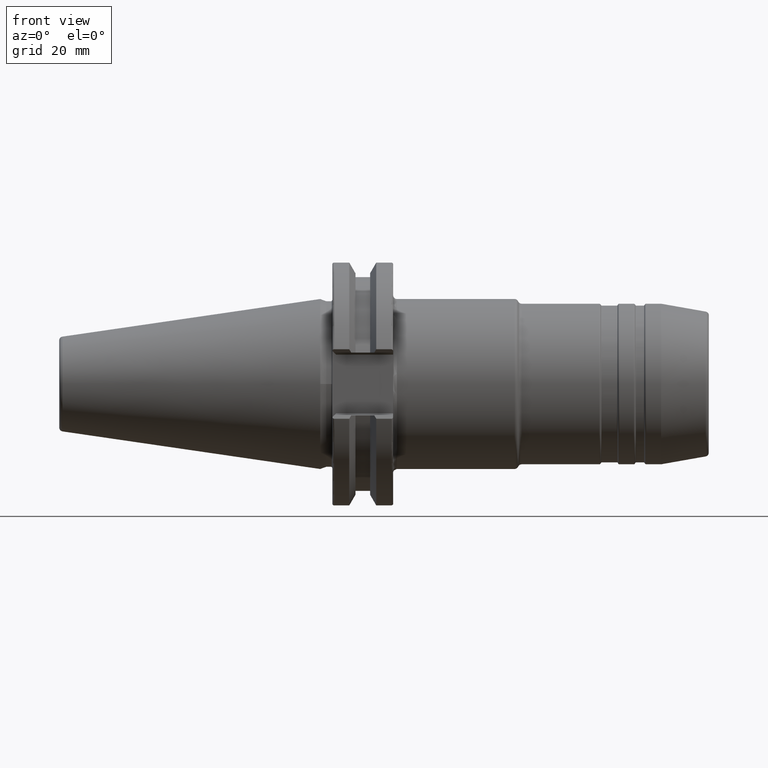
[diagram: clean part render]
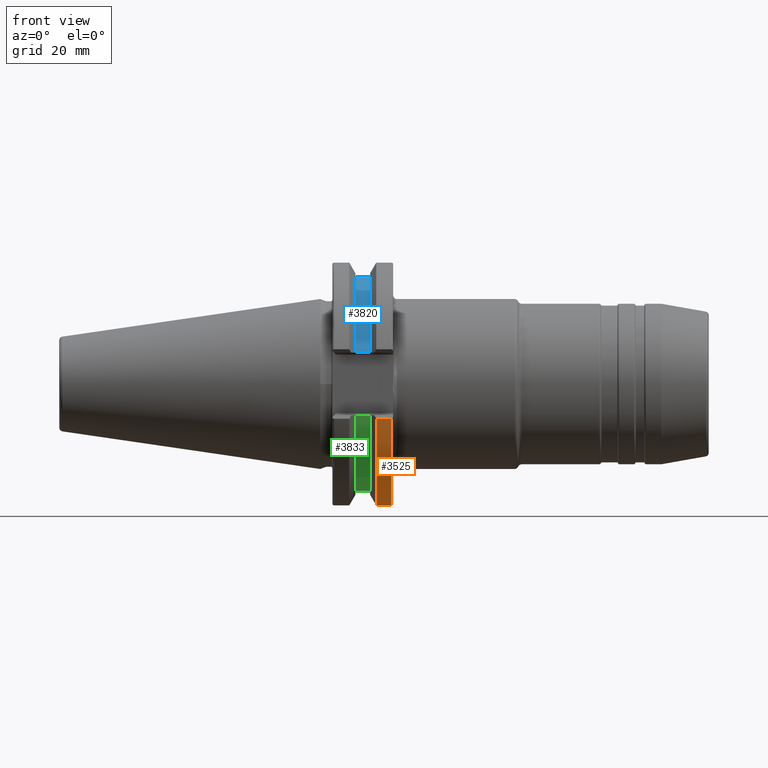
[diagram: same view with three faces highlighted in distinct colors, each labeled with its STEP entity id]
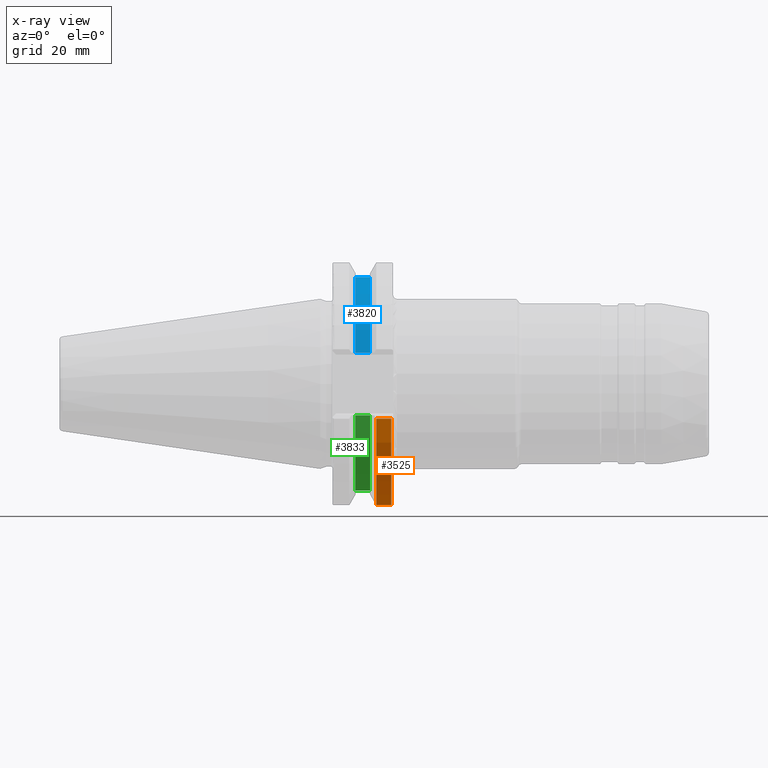
[diagram: x-ray of the same camera — body ghosted, the three highlighted faces saturated]
A machine part, front view with three faces highlighted in distinct colors.
The next image is the same camera in x-ray (body ghosted, the three faces saturated) — at least one of them is partly hidden behind the body in this view.
Their STEP definitions:

[orange] entity #3525 — the highlighted cylindrical surface (partial cylindrical patch) has radius 31.75 mm, axis along (1, 0, 0).
#1096=DIRECTION('',(1.E0,0.E0,0.E0));
#1097=VECTOR('',#1096,3.914790865E0);
#1098=CARTESIAN_POINT('',(1.466020913500E1,3.042082819764E1,-9.090418679549E0));
#1099=LINE('',#1098,#1097);
#1100=DIRECTION('',(-1.E0,0.E0,0.E0));
#1101=VECTOR('',#1100,3.914790865E0);
#1102=CARTESIAN_POINT('',(1.8575E1,-3.042082819764E1,-9.090418679549E0));
#1103=LINE('',#1102,#1101);
#1382=CARTESIAN_POINT('',(1.466020913500E1,3.042082819764E1,-9.090418679549E0));
#1403=CARTESIAN_POINT('',(1.466020913500E1,-3.042082819764E1,
-9.090418679549E0));
#1409=CARTESIAN_POINT('',(1.466020913500E1,0.E0,0.E0));
#1410=DIRECTION('',(1.E0,0.E0,0.E0));
#1411=DIRECTION('',(0.E0,-9.581363211856E-1,-2.863123993559E-1));
#1412=AXIS2_PLACEMENT_3D('',#1409,#1410,#1411);
#1521=CARTESIAN_POINT('',(1.8575E1,0.E0,0.E0));
#1522=DIRECTION('',(-1.E0,0.E0,0.E0));
#1523=DIRECTION('',(0.E0,9.581363211856E-1,-2.863123993559E-1));
#1524=AXIS2_PLACEMENT_3D('',#1521,#1522,#1523);
#1563=VERTEX_POINT('',#1382);
#1572=VERTEX_POINT('',#1403);
#1630=CARTESIAN_POINT('',(1.8575E1,3.042082819764E1,-9.090418679549E0));
#1631=VERTEX_POINT('',#1630);
#1634=CARTESIAN_POINT('',(1.8575E1,-3.042082819764E1,-9.090418679549E0));
#1635=VERTEX_POINT('',#1634);
#3512=CARTESIAN_POINT('',(0.E0,0.E0,0.E0));
#3513=DIRECTION('',(1.E0,0.E0,0.E0));
#3514=DIRECTION('',(0.E0,0.E0,1.E0));
#3515=AXIS2_PLACEMENT_3D('',#3512,#3513,#3514);
#3516=CYLINDRICAL_SURFACE('',#3515,3.175E1);
#3518=ORIENTED_EDGE('',*,*,#3517,.F.);
#3519=ORIENTED_EDGE('',*,*,#3360,.F.);
#3521=ORIENTED_EDGE('',*,*,#3520,.F.);
#3522=ORIENTED_EDGE('',*,*,#3328,.F.);
#3523=EDGE_LOOP('',(#3518,#3519,#3521,#3522));
#3524=FACE_OUTER_BOUND('',#3523,.F.);
#3525=ADVANCED_FACE('',(#3524),#3516,.T.);
#1413=CIRCLE('',#1412,3.175E1);
#1525=CIRCLE('',#1524,3.175E1);
#3328=EDGE_CURVE('',#1635,#1572,#1103,.T.);
#3360=EDGE_CURVE('',#1563,#1631,#1099,.T.);
#3517=EDGE_CURVE('',#1631,#1635,#1525,.T.);
#3520=EDGE_CURVE('',#1572,#1563,#1413,.T.);

[blue] entity #3820 — the highlighted cylindrical surface (partial cylindrical patch) has radius 28.15 mm, axis along (1, 0, 0).
#1430=DIRECTION('',(1.E0,0.E0,0.E0));
#1431=VECTOR('',#1430,3.83E0);
#1432=CARTESIAN_POINT('',(9.2191E0,-2.693225575402E1,8.19E0));
#1433=LINE('',#1432,#1431);
#1434=CARTESIAN_POINT('',(9.2191E0,0.E0,0.E0));
#1435=DIRECTION('',(-1.E0,0.E0,0.E0));
#1436=DIRECTION('',(0.E0,-9.567408793613E-1,2.909413854352E-1));
#1437=AXIS2_PLACEMENT_3D('',#1434,#1435,#1436);
#1439=DIRECTION('',(1.E0,0.E0,0.E0));
#1440=VECTOR('',#1439,3.83E0);
#1441=CARTESIAN_POINT('',(9.2191E0,2.693225575402E1,8.19E0));
#1442=LINE('',#1441,#1440);
#1443=CARTESIAN_POINT('',(1.30491E1,0.E0,0.E0));
#1444=DIRECTION('',(1.E0,0.E0,0.E0));
#1445=DIRECTION('',(0.E0,9.567408793613E-1,2.909413854352E-1));
#1446=AXIS2_PLACEMENT_3D('',#1443,#1444,#1445);
#1527=CARTESIAN_POINT('',(9.2191E0,2.693225575402E1,8.19E0));
#1529=VERTEX_POINT('',#1527);
#1534=CARTESIAN_POINT('',(1.30491E1,2.693225575402E1,8.19E0));
#1535=VERTEX_POINT('',#1534);
#1543=CARTESIAN_POINT('',(9.2191E0,-2.693225575402E1,8.19E0));
#1545=VERTEX_POINT('',#1543);
#1550=CARTESIAN_POINT('',(1.30491E1,-2.693225575402E1,8.19E0));
#1551=VERTEX_POINT('',#1550);
#3808=CARTESIAN_POINT('',(0.E0,0.E0,0.E0));
#3809=DIRECTION('',(1.E0,0.E0,0.E0));
#3810=DIRECTION('',(0.E0,0.E0,1.E0));
#3811=AXIS2_PLACEMENT_3D('',#3808,#3809,#3810);
#3812=CYLINDRICAL_SURFACE('',#3811,2.815E1);
#3813=ORIENTED_EDGE('',*,*,#3609,.F.);
#3815=ORIENTED_EDGE('',*,*,#3814,.T.);
#3816=ORIENTED_EDGE('',*,*,#3693,.T.);
#3817=ORIENTED_EDGE('',*,*,#3788,.T.);
#3818=EDGE_LOOP('',(#3813,#3815,#3816,#3817));
#3819=FACE_OUTER_BOUND('',#3818,.F.);
#3820=ADVANCED_FACE('',(#3819),#3812,.T.);
#1438=CIRCLE('',#1437,2.815E1);
#1447=CIRCLE('',#1446,2.815E1);
#3609=EDGE_CURVE('',#1545,#1551,#1433,.T.);
#3693=EDGE_CURVE('',#1529,#1535,#1442,.T.);
#3788=EDGE_CURVE('',#1535,#1551,#1447,.T.);
#3814=EDGE_CURVE('',#1545,#1529,#1438,.T.);

[green] entity #3833 — the highlighted cylindrical surface (partial cylindrical patch) has radius 28.15 mm, axis along (1, 0, 0).
#1448=DIRECTION('',(1.E0,0.E0,0.E0));
#1449=VECTOR('',#1448,3.83E0);
#1450=CARTESIAN_POINT('',(9.2191E0,-2.693225575402E1,-8.19E0));
#1451=LINE('',#1450,#1449);
#1452=CARTESIAN_POINT('',(1.30491E1,0.E0,0.E0));
#1453=DIRECTION('',(1.E0,0.E0,0.E0));
#1454=DIRECTION('',(0.E0,-9.567408793613E-1,-2.909413854352E-1));
#1455=AXIS2_PLACEMENT_3D('',#1452,#1453,#1454);
#1457=DIRECTION('',(1.E0,0.E0,0.E0));
#1458=VECTOR('',#1457,3.83E0);
#1459=CARTESIAN_POINT('',(9.2191E0,2.693225575402E1,-8.19E0));
#1460=LINE('',#1459,#1458);
#1461=CARTESIAN_POINT('',(9.2191E0,0.E0,0.E0));
#1462=DIRECTION('',(-1.E0,0.E0,0.E0));
#1463=DIRECTION('',(0.E0,9.567408793613E-1,-2.909413854352E-1));
#1464=AXIS2_PLACEMENT_3D('',#1461,#1462,#1463);
#1531=CARTESIAN_POINT('',(9.2191E0,2.693225575402E1,-8.19E0));
#1533=VERTEX_POINT('',#1531);
#1536=CARTESIAN_POINT('',(1.30491E1,2.693225575402E1,-8.19E0));
#1537=VERTEX_POINT('',#1536);
#1547=CARTESIAN_POINT('',(9.2191E0,-2.693225575402E1,-8.19E0));
#1549=VERTEX_POINT('',#1547);
#1552=CARTESIAN_POINT('',(1.30491E1,-2.693225575402E1,-8.19E0));
#1553=VERTEX_POINT('',#1552);
#3821=CARTESIAN_POINT('',(0.E0,0.E0,0.E0));
#3822=DIRECTION('',(1.E0,0.E0,0.E0));
#3823=DIRECTION('',(0.E0,0.E0,1.E0));
#3824=AXIS2_PLACEMENT_3D('',#3821,#3822,#3823);
#3825=CYLINDRICAL_SURFACE('',#3824,2.815E1);
#3826=ORIENTED_EDGE('',*,*,#3304,.T.);
#3827=ORIENTED_EDGE('',*,*,#3803,.T.);
#3828=ORIENTED_EDGE('',*,*,#3384,.F.);
#3830=ORIENTED_EDGE('',*,*,#3829,.T.);
#3831=EDGE_LOOP('',(#3826,#3827,#3828,#3830));
#3832=FACE_OUTER_BOUND('',#3831,.F.);
#3833=ADVANCED_FACE('',(#3832),#3825,.T.);
#1456=CIRCLE('',#1455,2.815E1);
#1465=CIRCLE('',#1464,2.815E1);
#3304=EDGE_CURVE('',#1549,#1553,#1451,.T.);
#3384=EDGE_CURVE('',#1533,#1537,#1460,.T.);
#3803=EDGE_CURVE('',#1553,#1537,#1456,.T.);
#3829=EDGE_CURVE('',#1533,#1549,#1465,.T.);